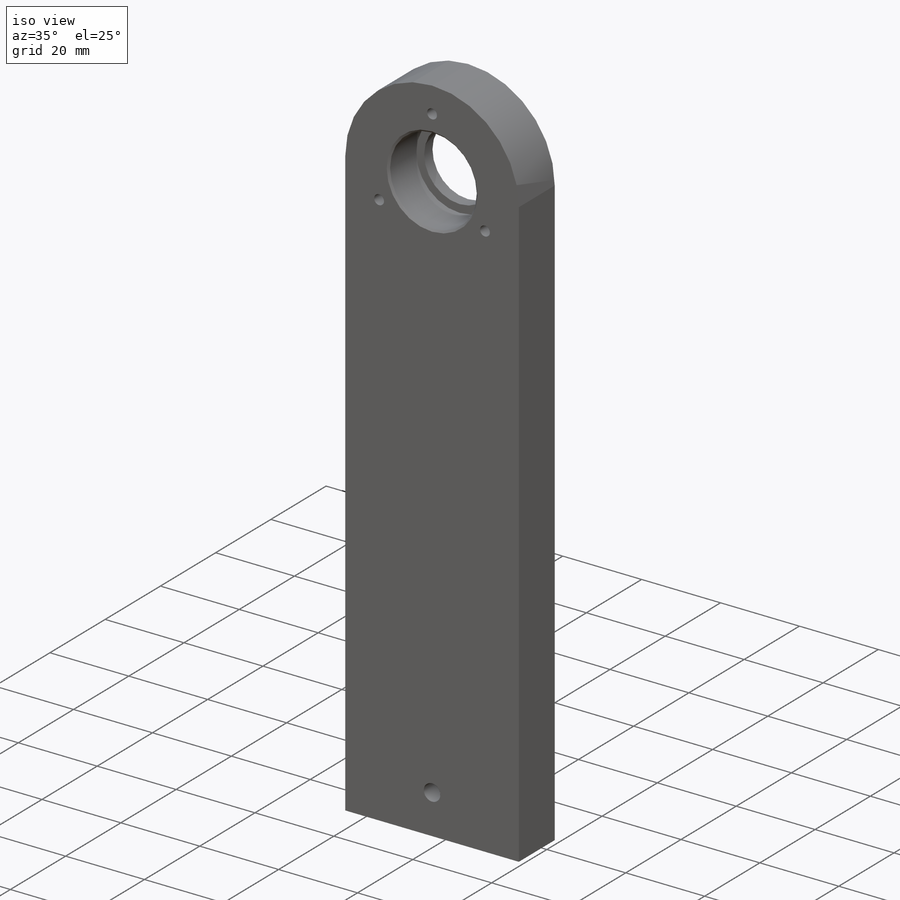
[diagram: iso view]
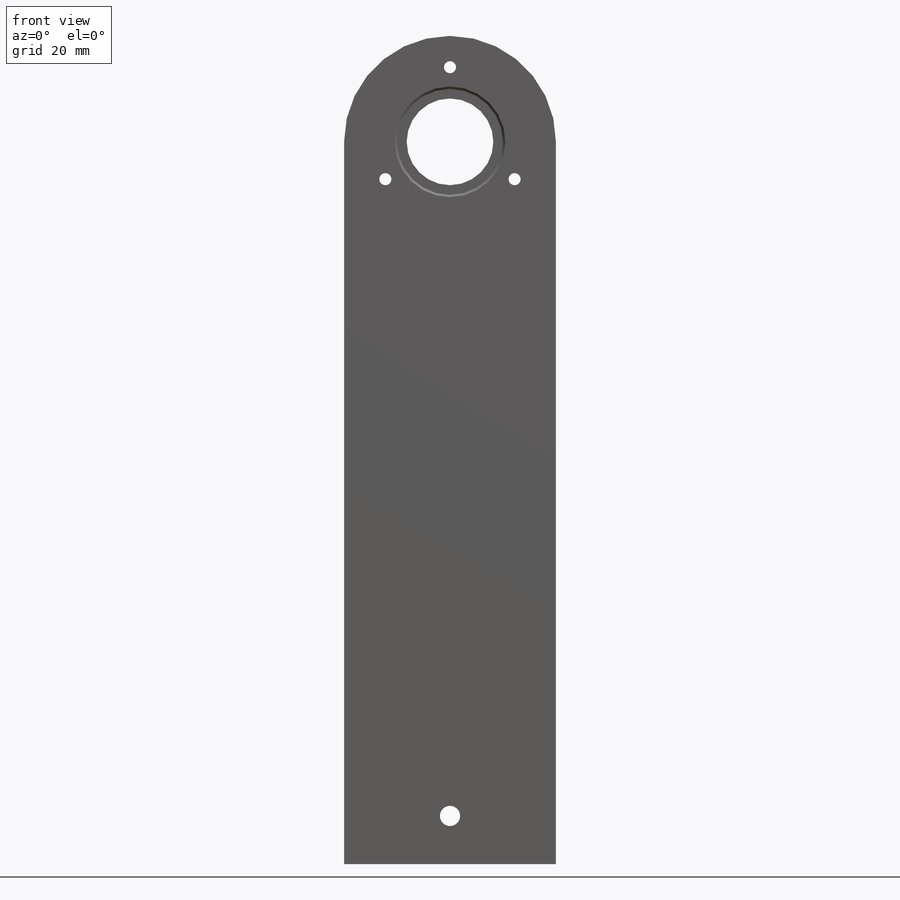
[diagram: front view]
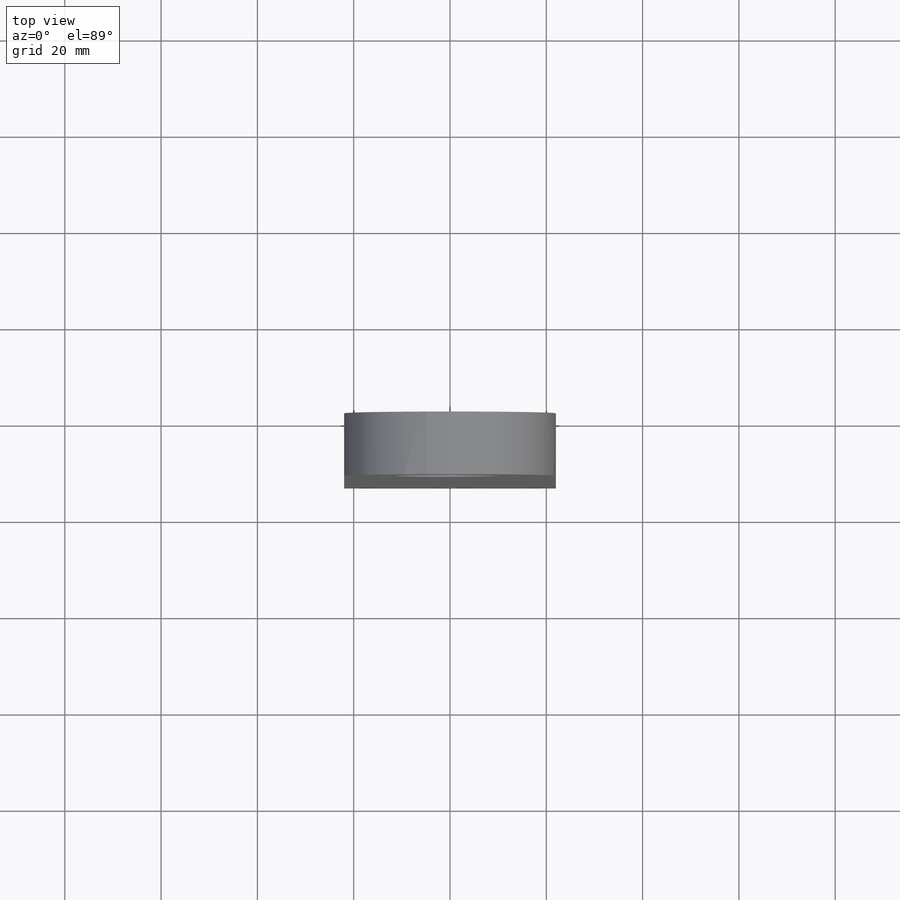
[diagram: top view]
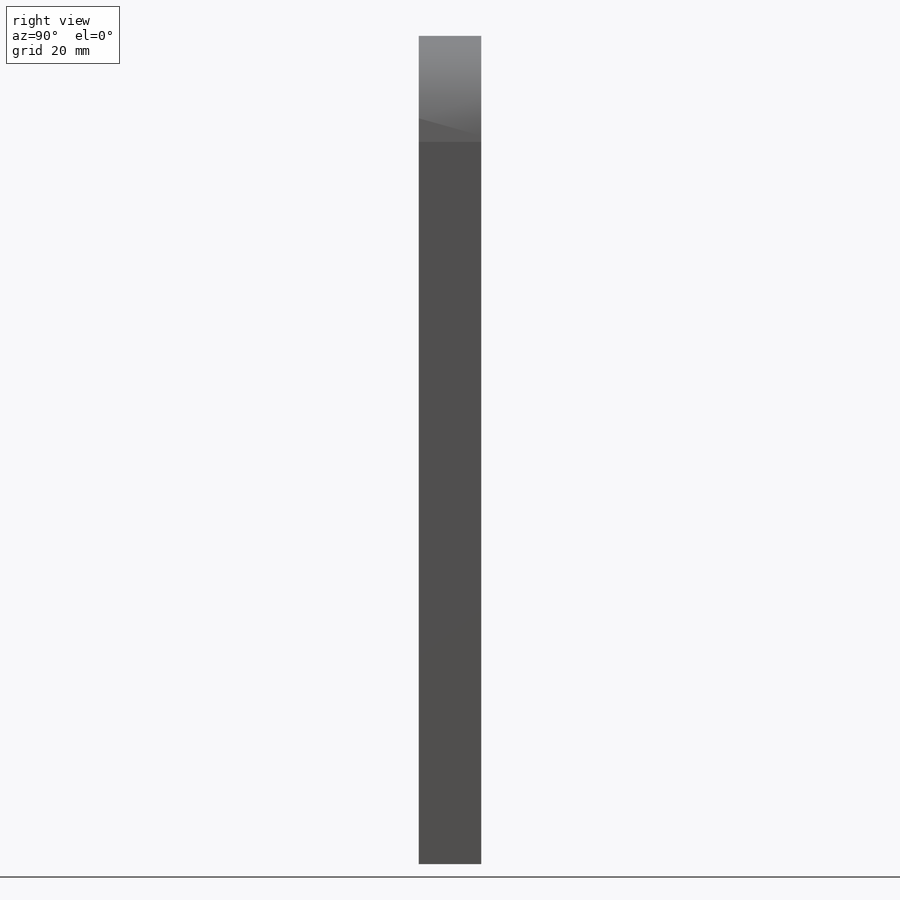
[diagram: right view]
SOLIDWORKS PART (.sldprt)
format: sldprt  version: not decoded by parser v0  size: 330,752 bytes
history: native  units: mm
features: sketch x11, hole x4, fillet x4, plane x3, cut_extrude x2, material x1, extrude x1, thread x1, pattern_circular x1, chamfer x1 (+13 scaffold rows collapsed)
feature tree (42):
  scaffold x13  (default folders/planes/origin — collapsed)
  material  "3.1325 (EN-AW 2017A)"
  plane  "Plan de face"
  plane  "Plan de dessus"
  plane  "Plan de droite"
  sketch  "Esquisse3"  dims[D1=22.0mm D2=22.0mm D3=22.0mm D4=150.0mm]
  extrude  "Boss.-Extru.1"  Depth=13mm
  sketch  "Esquisse4"  dims[D1=~11.223077mm]
  cut_extrude  "Enlèv. mat.-Extru.1"  Depth=10mm
  sketch  "Esquisse5"  dims[D1=~4.064452mm]
  cut_extrude  "Enlèv. mat.-Extru.2"  [1 undecoded]
  hole  "Trou taraudé M31"  Diameter=2.5mm Depth=13mm
  sketch  "Esquisse7"  dims[D1=0.0mm D2=15.5mm]
  sketch  "Esquisse6"  dims[hole-wizard template sketch: 60 standard entries collapsed; hole parameters kept: c18.Profondeur du trou pour taraudage jusqu'au prochain=13.0mm]
  thread  "Filetage de perçage1"  Diameter=3mm  [1 undecoded]
  pattern_circular  "Répétition circulaire1"  Count=3 Angle=360deg
  fillet  "Congé1"  Radius=22mm
  hole  "Trou taraudé M51"  Diameter=4.2mm Depth=14mm
  sketch  "Esquisse9"  dims[D1=0.0mm D2=8.0mm D3=44.0mm]
  sketch  "Esquisse8"  dims[hole-wizard template sketch: 50 standard entries collapsed; hole parameters above]
  fillet  "Filetage de perçage2"  Radius=10mm
  hole  "Trou taraudé M52"  Diameter=4.2mm Depth=14mm
  sketch  "Esquisse11"  dims[D1=0.0mm D2=8.0mm]
  sketch  "Esquisse10"  dims[hole-wizard template sketch: 50 standard entries collapsed; hole parameters above]
  fillet  "Filetage de perçage3"  Radius=10mm
  hole  "Trou taraudé M53"  Diameter=4.2mm Depth=13mm
  sketch  "Esquisse13"  dims[D1=22.0mm D2=10.0mm]
  sketch  "Esquisse12"  dims[hole-wizard template sketch: 60 standard entries collapsed; hole parameters kept: c18.Profondeur du trou pour taraudage jusqu'au prochain=13.0mm]
  fillet  "Filetage de perçage4"  Radius=5mm
  chamfer  "Chanfrein1"  Distance=0.5mm Angle=45deg
decode coverage: 24 of 25 modeling features carry decoded parameters
note: ~ marks probable driven/reference dimensions
note: 2 parameter values undecoded
summary: Diameter pulled from absorbed wizard sketch
note: suppression state not decoded; provenance and decode notes live in map.json
